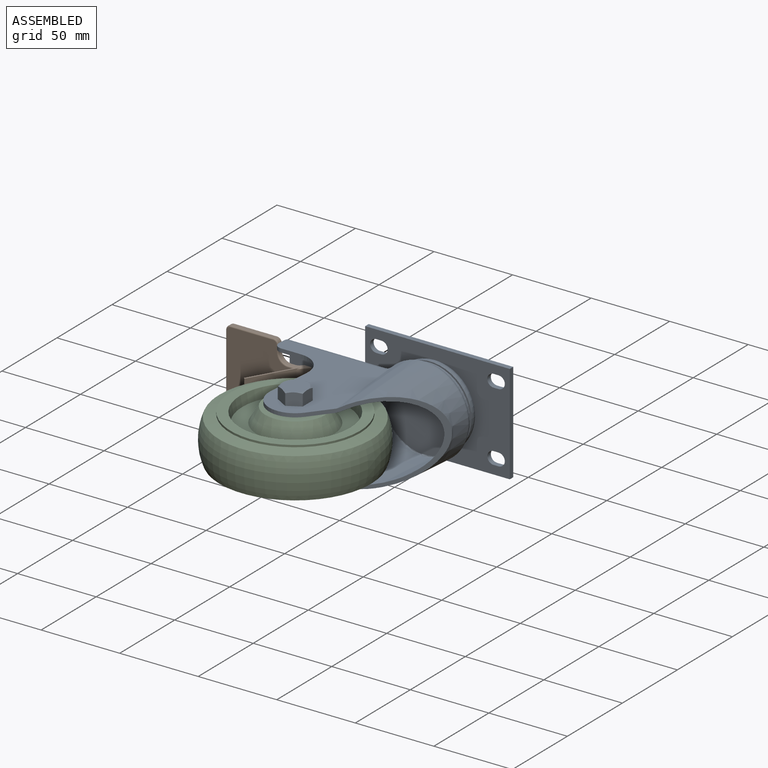
[diagram: assembled view]
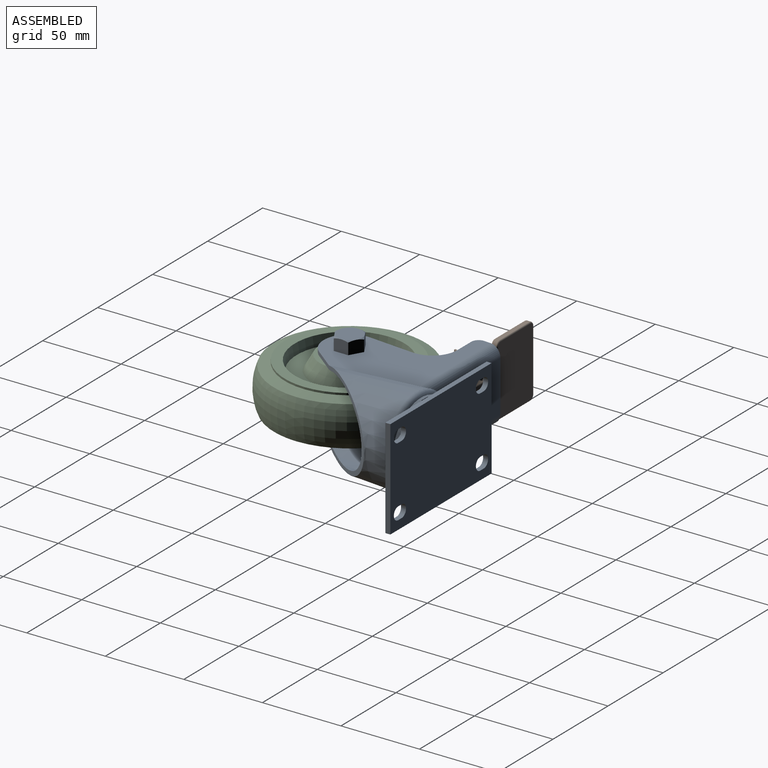
[diagram: assembled view, second angle]
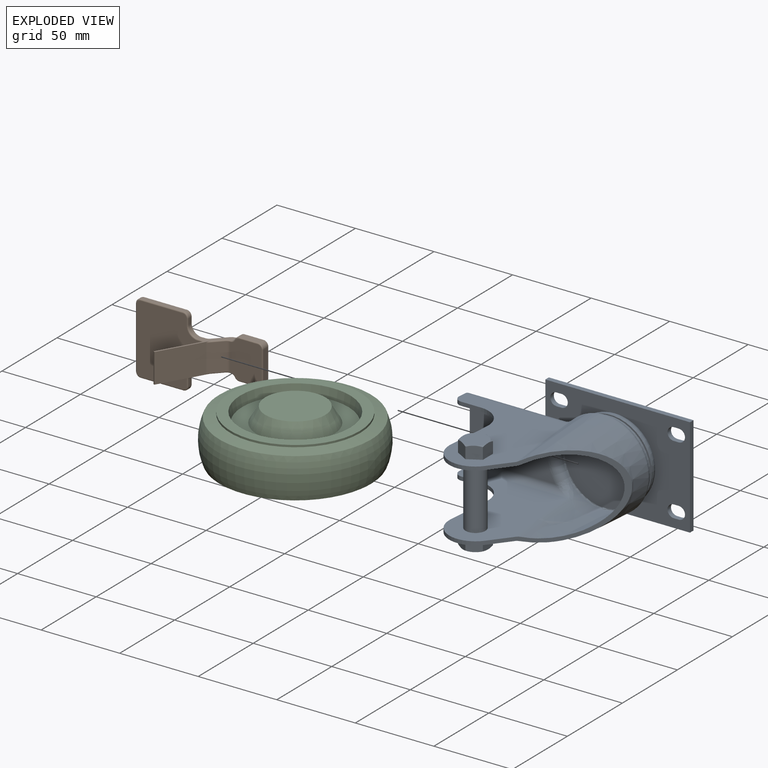
[diagram: exploded view]
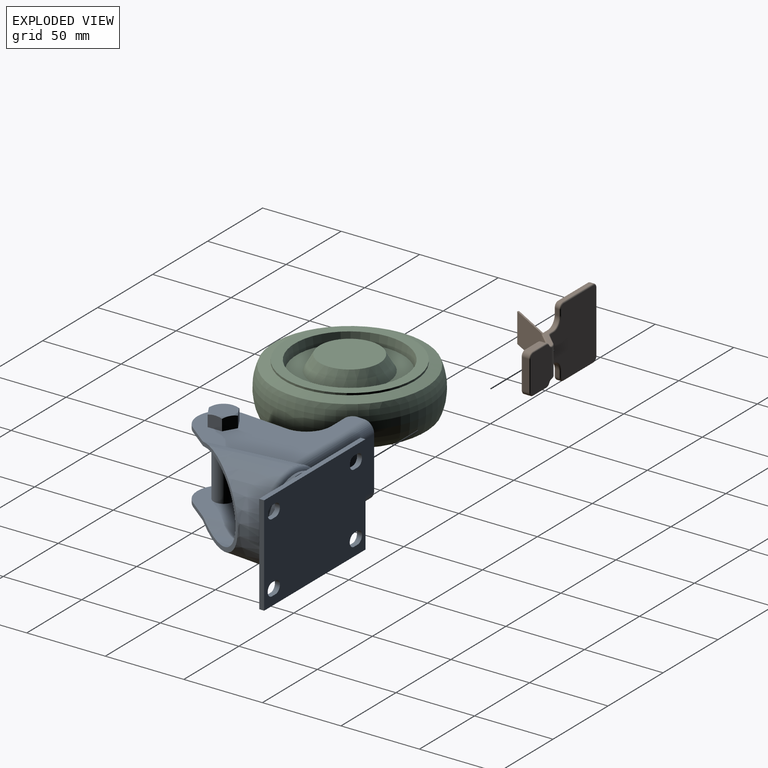
[diagram: exploded view, second angle]
ASSEMBLY  parts=3 mates=2
PART A: 105 faces, bbox 134.1x105.2x69.5 mm
  f0: plane 92.08x63.5mm, normal (0,1,0), area 5548mm2, adj f1,f2,f3,f4,f5,f6,f7,f8
  f1: plane 92.08x3.18mm, normal (0,0,1), area 292.3mm2, adj f0,f2,f4,f21
  f2: plane 63.5x3.18mm, normal (1,0,0), area 201.6mm2, adj f0,f1,f3,f21
  f3: plane 92.08x3.18mm, normal (0,0,-1), area 292.3mm2, adj f0,f2,f4,f21
  f4: plane 63.5x3.18mm, normal (-1,0,0), area 201.6mm2, adj f0,f1,f3,f21
  f5: cylinder r=3.97mm len=7.94mm, axis (0,1,0), area 39.6mm2, adj f0,f6,f8,f21
  f6: plane 3.18x3.18mm, normal (0,0,-1), area 10.1mm2, adj f0,f5,f7,f21
  f7: cylinder r=3.97mm len=7.94mm, axis (0,1,0), area 39.6mm2, adj f0,f6,f8,f21
  f8: plane 3.18x3.18mm, normal (0,0,1), area 10.1mm2, adj f0,f5,f7,f21
  f9: cylinder r=3.97mm len=7.94mm, axis (0,1,0), area 39.6mm2, adj f0,f10,f12,f21
  f10: plane 3.18x3.18mm, normal (0,0,1), area 10.1mm2, adj f0,f9,f11,f21
  f11: cylinder r=3.97mm len=7.94mm, axis (0,1,0), area 39.6mm2, adj f0,f10,f12,f21
  f12: plane 3.18x3.18mm, normal (0,0,-1), area 10.1mm2, adj f0,f9,f11,f21
  f13: cylinder r=3.97mm len=7.94mm, axis (0,1,0), area 39.6mm2, adj f0,f14,f16,f21
  f14: plane 3.18x3.18mm, normal (0,0,-1), area 10.1mm2, adj f0,f13,f15,f21
  f15: cylinder r=3.97mm len=7.94mm, axis (0,1,0), area 39.6mm2, adj f0,f14,f16,f21
  f16: plane 3.18x3.18mm, normal (0,0,1), area 10.1mm2, adj f0,f13,f15,f21
  f17: cylinder r=3.97mm len=7.94mm, axis (0,1,0), area 39.6mm2, adj f0,f18,f20,f21
  f18: plane 3.18x3.18mm, normal (0,0,1), area 10.1mm2, adj f0,f17,f19,f21
  f19: cylinder r=3.97mm len=7.94mm, axis (0,1,0), area 39.6mm2, adj f0,f18,f20,f21
  f20: plane 3.18x3.18mm, normal (0,0,-1), area 10.1mm2, adj f0,f17,f19,f21
  f21: plane 98.03x69.45mm, normal (0,-1,0), area 4119.3mm2, adj f1,f2,f3,f4,f5,f6,f7,f8
  f22: torus R=21.34mm, axis (0,1,0), area 572.7mm2, adj f21,f23,f24
  f23: torus R=21.34mm, axis (0,1,0), area 572.7mm2, adj f21,f22,f24
  f24: cylinder r=26.1mm len=52.2mm, axis (0,1,0), area 249.9mm2, adj f22,f23,f25
  f25: plane 52.2x52.2mm, normal (0,-1,0), area 281.6mm2, adj f24,f26
  f26: cylinder r=24.32mm len=48.64mm, axis (0,1,0), area 174.7mm2, adj f25,f27
  f27: plane 52.2x52.2mm, normal (0,1,0), area 281.6mm2, adj f26,f29
  f28: plane 15.88x15.88mm, normal (0,0,-1), area 197.9mm2, adj f32,f33,f34,f35,f36,f37
  f29: cylinder r=26.1mm len=52.2mm, axis (0,1,0), area 343.6mm2, adj f27,f38
  f30: plane 15.88x15.88mm, normal (0,0,1), area 197.9mm2, adj f39,f40,f41,f42,f43,f44
  f31: plane 23.81x9.53mm, normal (0,1,0), area 226.8mm2, adj f48,f49,f50,f51
  f32: cone r=0mm half-angle=60deg, axis (0,0,1), area 6.2mm2, adj f28,f54,f55
  f33: cone r=0mm half-angle=60deg, axis (0,0,1), area 6.2mm2, adj f28,f55,f56
  f34: cone r=0mm half-angle=60deg, axis (0,0,1), area 6.2mm2, adj f28,f56,f57
  f35: cone r=0mm half-angle=60deg, axis (0,0,1), area 6.2mm2, adj f28,f57,f58
  f36: cone r=0mm half-angle=60deg, axis (0,0,1), area 6.2mm2, adj f28,f58,f59
  f37: cone r=0mm half-angle=60deg, axis (0,0,1), area 6.2mm2, adj f28,f54,f59
  f38: plane 52.2x52.2mm, normal (0,-1,0), area 129.4mm2, adj f29,f60,f62
  f39: cone r=0mm half-angle=60deg, axis (0,0,-1), area 6.2mm2, adj f30,f64,f65
  f40: cone r=0mm half-angle=60deg, axis (0,0,-1), area 6.2mm2, adj f30,f65,f66
  f41: cone r=0mm half-angle=60deg, axis (0,0,-1), area 6.2mm2, adj f30,f66,f67
  f42: cone r=0mm half-angle=60deg, axis (0,0,-1), area 6.2mm2, adj f30,f67,f68
  f43: cone r=0mm half-angle=60deg, axis (0,0,-1), area 6.2mm2, adj f30,f68,f69
  f44: cone r=0mm half-angle=60deg, axis (0,0,-1), area 6.2mm2, adj f30,f64,f69
  f45: plane 50.59x50.59mm, normal (0,-1,0), area 2010.5mm2, adj f70,f71
  f46: bspline ~4.23x3.4mm, area 11.5mm2, adj f47,f62,f63,f76
  f47: torus R=31.64mm, axis (0,-1,0), area 160.4mm2, adj f46,f52,f60,f62,f77
  f48: plane 25.4x0.79mm, normal (-0.71,0.71,0), area 27.6mm2, adj f31,f49,f51,f77
  f49: plane 11.11x0.79mm, normal (0,0.71,0.71), area 11.6mm2, adj f31,f48,f50,f77
  f50: plane 25.4x0.79mm, normal (0.71,0.71,0), area 27.6mm2, adj f31,f49,f51,f77
  f51: plane 11.11x0.79mm, normal (0,0.71,-0.71), area 11.6mm2, adj f31,f48,f50,f77
  f52: bspline ~4.23x3.4mm, area 11.5mm2, adj f47,f60,f61,f78
  f53: torus R=31.64mm, axis (0,-1,0), area 266mm2, adj f70,f71,f73,f74,f79
  f54: plane 9.92x8.69mm, normal (-1,0,0), area 70.5mm2, adj f32,f37,f55,f59,f80
  f55: plane 8.69x8.69mm, normal (-0.5,0.87,0), area 70.5mm2, adj f32,f33,f54,f56,f80
  f56: plane 8.69x8.69mm, normal (0.5,0.87,0), area 70.5mm2, adj f33,f34,f55,f57,f80
  f57: plane 9.92x8.69mm, normal (1,0,0), area 70.5mm2, adj f34,f35,f56,f58,f80
  f58: plane 8.69x8.69mm, normal (0.5,-0.87,0), area 70.5mm2, adj f35,f36,f57,f59,f80
  f59: plane 8.69x8.69mm, normal (-0.5,-0.87,0), area 70.5mm2, adj f36,f37,f54,f58,f80
  f60: torus R=25.29mm, axis (0,-1,0), area 440mm2, adj f38,f47,f52,f62,f82
  f61: bspline ~9.82x9.36mm, area 40mm2, adj f52,f78,f81,f82
  f62: torus R=25.29mm, axis (0,-1,0), area 440mm2, adj f38,f46,f47,f60,f82
  f63: bspline ~9.82x9.36mm, area 40mm2, adj f46,f76,f82,f83
  f64: plane 8.69x8.69mm, normal (0.5,-0.87,0), area 70.5mm2, adj f39,f44,f65,f69,f84
  f65: plane 8.69x8.69mm, normal (-0.5,-0.87,0), area 70.5mm2, adj f39,f40,f64,f66,f84
  f66: plane 9.92x8.69mm, normal (-1,0,0), area 70.5mm2, adj f40,f41,f65,f67,f84
  f67: plane 8.69x8.69mm, normal (-0.5,0.87,0), area 70.5mm2, adj f41,f42,f66,f68,f84
  f68: plane 8.69x8.69mm, normal (0.5,0.87,0), area 70.5mm2, adj f42,f43,f67,f69,f84
  f69: plane 9.92x8.69mm, normal (1,0,0), area 70.5mm2, adj f43,f44,f64,f68,f84
  f70: torus R=25.29mm, axis (0,-1,0), area 104.7mm2, adj f45,f53,f71,f74,f85
  f71: torus R=25.29mm, axis (0,-1,0), area 104.7mm2, adj f45,f53,f70,f73,f85
  f72: bspline ~11.14x9.48mm, area 59.8mm2, adj f73,f85,f87,f88
  f73: bspline ~6.13x5.69mm, area 16.1mm2, adj f53,f71,f72,f88
  f74: bspline ~6.13x5.69mm, area 16.1mm2, adj f53,f70,f75,f94
  f75: bspline ~11.14x9.48mm, area 59.8mm2, adj f74,f85,f93,f94
  f76: cylinder r=6.35mm len=64.36mm, axis (1,0,0), area 590.8mm2, adj f46,f63,f77,f84,f95
  f77: plane 54.38x33.01mm, normal (0,1,0), area 1384.2mm2, adj f47,f48,f49,f50,f51,f76,f78,f95
  f78: cylinder r=6.35mm len=64.36mm, axis (-1,0,0), area 590.8mm2, adj f52,f61,f77,f80,f95
  f79: plane 54.59x33.01mm, normal (0,-1,0), area 1673.3mm2, adj f53,f88,f94,f95
  f80: plane 73.82x70.62mm, normal (0,0,-1), area 2610.7mm2, adj f54,f55,f56,f57,f58,f59,f78,f81
  f81: bspline ~54.78x7.19mm, area 88.2mm2, adj f61,f80,f82,f101
  f82: cone r=0mm half-angle=3deg, axis (0,1,0), area 4023.8mm2, adj f60,f61,f62,f63,f81,f83,f101
  f83: bspline ~54.78x7.19mm, area 88.2mm2, adj f63,f82,f84,f101
  f84: plane 73.82x70.62mm, normal (0,0,1), area 2610.7mm2, adj f64,f65,f66,f67,f68,f69,f76,f83
  f85: cone r=0mm half-angle=3deg, axis (0,1,0), area 3836.4mm2, adj f70,f71,f72,f75,f87,f93,f101
  f86: cylinder r=16.67mm len=29.78mm, axis (0,0,-1), area 101.5mm2, adj f80,f92,f101,f102
  f87: bspline ~54.9x8.15mm, area 153mm2, adj f72,f85,f101,f102
  f88: cylinder r=3.98mm len=64.36mm, axis (-1,0,0), area 370.5mm2, adj f72,f73,f79,f95,f102
  f89: cylinder r=4.76mm len=5.18mm, axis (0,0,-1), area 18.8mm2, adj f80,f90,f95,f102
  f90: plane 12.54x2.38mm, normal (0,-1,0), area 29.8mm2, adj f80,f89,f91,f102
  f91: cylinder r=15.88mm len=17.26mm, axis (0,0,-1), area 62.5mm2, adj f80,f90,f92,f102
  f92: plane 28.91x2.53mm, normal (-1,0.09,0), area 68.9mm2, adj f80,f86,f91,f102
  f93: bspline ~54.9x8.15mm, area 153mm2, adj f75,f85,f101,f103
  f94: cylinder r=3.98mm len=64.36mm, axis (1,0,0), area 370.5mm2, adj f74,f75,f79,f95,f103
  f95: plane 45.62x10.93mm, normal (-1,0.09,0), area 137.3mm2, adj f76,f77,f78,f79,f80,f84,f88,f89
  f96: cylinder r=4.76mm len=5.18mm, axis (0,0,-1), area 18.8mm2, adj f84,f95,f97,f103
  f97: plane 12.54x2.38mm, normal (0,-1,0), area 29.8mm2, adj f84,f96,f98,f103
  f98: cylinder r=15.88mm len=17.26mm, axis (0,0,-1), area 62.5mm2, adj f84,f97,f99,f103
  f99: plane 28.91x2.53mm, normal (-1,0.09,0), area 68.9mm2, adj f84,f98,f100,f103
  f100: cylinder r=16.67mm len=29.78mm, axis (0,0,-1), area 101.5mm2, adj f84,f99,f101,f103
  f101: plane 63.22x51.94mm, normal (0.79,-0.62,0), area 497.4mm2, adj f80,f81,f82,f83,f84,f85,f86,f87
  f102: plane 73.82x70.62mm, normal (0,0,1), area 2702.3mm2, adj f86,f87,f88,f89,f90,f91,f92,f95
  f103: plane 73.82x70.62mm, normal (0,0,-1), area 2702.3mm2, adj f93,f94,f95,f96,f97,f98,f99,f100
  f104: cylinder r=6.35mm len=40.64mm, axis (0,0,-1), area 1621.5mm2, adj f102,f103
PART B: 92 faces, bbox 75.9x40.2x46.1 mm
  f0: cylinder r=3.17mm len=4.28mm, axis (0,-1,0), area 21.3mm2, adj f1,f6,f8,f11
  f1: plane 19.05x4.28mm, normal (1,0,0), area 81.5mm2, adj f0,f2,f5,f12
  f2: cylinder r=3.17mm len=4.28mm, axis (0,1,0), area 21.3mm2, adj f1,f4,f13,f16
  f3: cylinder r=0.63mm len=11.89mm, axis (1,0,0), area 11.9mm2, adj f4,f16,f17,f19
  f4: torus R=2.54mm, axis (0,1,0), area 4.6mm2, adj f2,f3,f5,f19
  f5: cylinder r=0.64mm len=19.05mm, axis (0,0,-1), area 19mm2, adj f1,f4,f6,f19
  f6: torus R=2.54mm, axis (0,1,0), area 4.6mm2, adj f0,f5,f7,f19
  f7: cylinder r=0.63mm len=11.89mm, axis (-1,0,0), area 11.9mm2, adj f6,f8,f9,f19
  f8: plane 11.89x4.28mm, normal (0,0,-1), area 50.9mm2, adj f0,f7,f10,f21
  f9: torus R=2.54mm, axis (0,1,0), area 3.1mm2, adj f7,f19,f21,f22
  f10: cylinder r=0.64mm len=11.89mm, axis (1,0,0), area 11.9mm2, adj f8,f11,f15,f25
  f11: torus R=2.54mm, axis (0,-1,0), area 4.6mm2, adj f0,f10,f12,f25
  f12: cylinder r=0.64mm len=19.05mm, axis (0,0,-1), area 19mm2, adj f1,f11,f13,f25
  f13: torus R=2.54mm, axis (0,-1,0), area 4.6mm2, adj f2,f12,f14,f25
  f14: cylinder r=0.64mm len=11.89mm, axis (-1,0,0), area 11.9mm2, adj f13,f16,f18,f25
  f15: torus R=2.54mm, axis (0,-1,0), area 3.1mm2, adj f10,f21,f23,f25
  f16: plane 11.89x4.28mm, normal (0,0,1), area 50.9mm2, adj f2,f3,f14,f28
  f17: torus R=2.54mm, axis (0,1,0), area 3.1mm2, adj f3,f19,f27,f28
  f18: torus R=2.54mm, axis (0,-1,0), area 3.1mm2, adj f14,f25,f28,f29
  f19: plane 24.15x20.26mm, normal (0,-1,0), area 463.9mm2, adj f3,f4,f5,f6,f7,f9,f17,f20
  f20: cylinder r=0.64mm len=0.64mm, axis (1,0,0), area 0.2mm2, adj f19,f22,f46,f73
  f21: cylinder r=3.17mm len=4.28mm, axis (0,-1,0), area 14.5mm2, adj f8,f9,f15,f47
  f22: torus R=3.81mm, axis (0,1,0), area 3.6mm2, adj f9,f19,f20,f47
  f23: torus R=3.81mm, axis (0,-1,0), area 2.6mm2, adj f15,f25,f26,f47
  f24: torus R=7.14mm, axis (0,1,0), area 13mm2, adj f34,f44,f49,f50
  f25: plane 24.15x18.91mm, normal (0,1,0), area 440.1mm2, adj f10,f11,f12,f13,f14,f15,f18,f23
  f26: bspline ~1.24x0.78mm, area 1.1mm2, adj f23,f47,f48,f51
  f27: torus R=3.81mm, axis (0,1,0), area 3.6mm2, adj f17,f19,f31,f55
  f28: cylinder r=3.17mm len=4.28mm, axis (0,-1,0), area 14.5mm2, adj f16,f17,f18,f55
  f29: torus R=3.81mm, axis (0,-1,0), area 2.6mm2, adj f18,f25,f30,f55
  f30: bspline ~1.24x0.78mm, area 1.1mm2, adj f29,f51,f54,f55
  f31: cylinder r=0.64mm len=0.64mm, axis (-1,0,0), area 0.2mm2, adj f19,f27,f56,f77
  f32: cylinder r=3.17mm len=17.53mm, axis (0,0,1), area 44.8mm2, adj f19,f33,f46,f56
  f33: plane 17.53x7.23mm, normal (0.72,-0.69,0), area 175.6mm2, adj f32,f45,f57,f58
  f34: plane 44.02x43.21mm, normal (0,-1,0), area 1601.1mm2, adj f24,f35,f36,f37,f38,f39,f40,f41
  f35: torus R=7.14mm, axis (0,1,0), area 13mm2, adj f34,f36,f61,f62
  f36: cylinder r=0.79mm len=3.77mm, axis (0,0,-1), area 4.7mm2, adj f34,f35,f37,f63
  f37: torus R=2.38mm, axis (0,1,0), area 5.7mm2, adj f34,f36,f38,f64
  f38: cylinder r=0.79mm len=26.99mm, axis (-1,0,0), area 33.6mm2, adj f34,f37,f39,f65
  f39: torus R=2.38mm, axis (0,1,0), area 5.7mm2, adj f34,f38,f40,f66
  f40: cylinder r=0.79mm len=39.04mm, axis (0,0,-1), area 48.7mm2, adj f34,f39,f41,f67
  f41: torus R=2.38mm, axis (0,1,0), area 5.7mm2, adj f34,f40,f42,f68
  f42: cylinder r=0.79mm len=26.99mm, axis (1,0,0), area 33.6mm2, adj f34,f41,f43,f69
  f43: torus R=2.38mm, axis (0,1,0), area 5.7mm2, adj f34,f42,f44,f70
  f44: cylinder r=0.79mm len=3.77mm, axis (0,0,-1), area 4.7mm2, adj f24,f34,f43,f71
  f45: cylinder r=0.64mm len=7.67mm, axis (0.69,0.72,0), area 9.1mm2, adj f33,f46,f58,f73
  f46: torus R=3.81mm, axis (0,0,1), area 2.7mm2, adj f20,f32,f45,f73
  f47: cylinder r=3.17mm len=4.28mm, axis (0,-1,0), area 14.5mm2, adj f21,f22,f23,f26,f73
  f48: torus R=5.71mm, axis (0,0,1), area 3.7mm2, adj f26,f51,f52,f73
  f49: cylinder r=6.35mm len=6.35mm, axis (0,1,0), area 24.5mm2, adj f24,f71,f72,f73
  f50: cylinder r=0.79mm len=4.56mm, axis (1,0,0), area 5.4mm2, adj f24,f34,f60,f73
  f51: cylinder r=6.35mm len=17.86mm, axis (0,0,-1), area 89.9mm2, adj f25,f26,f30,f48,f54,f74
  f52: cylinder r=0.64mm len=7.43mm, axis (-0.69,-0.72,0), area 9.7mm2, adj f48,f73,f74,f75
  f53: cylinder r=0.63mm len=7.43mm, axis (0.69,0.72,0), area 9.7mm2, adj f54,f74,f76,f77
  f54: torus R=5.71mm, axis (0,0,-1), area 3.7mm2, adj f30,f51,f53,f77
  f55: cylinder r=3.17mm len=4.28mm, axis (0,-1,0), area 14.5mm2, adj f27,f28,f29,f30,f77
  f56: torus R=3.81mm, axis (0,0,-1), area 2.7mm2, adj f31,f32,f57,f77
  f57: cylinder r=0.63mm len=7.67mm, axis (-0.69,-0.72,0), area 9.1mm2, adj f33,f56,f58,f77
  f58: plane 28.18x18.8mm, normal (0.87,-0.5,0), area 562.5mm2, adj f33,f45,f57,f59,f73,f77
  f59: plane 18.8x0.88mm, normal (-0.5,-0.87,0), area 19.1mm2, adj f58,f60,f73,f77
  f60: plane 26.22x18.99mm, normal (-0.87,0.5,0), area 548.3mm2, adj f34,f50,f59,f61,f73,f77
  f61: cylinder r=0.79mm len=4.56mm, axis (-1,0,0), area 5.4mm2, adj f34,f35,f60,f77
  f62: cylinder r=6.35mm len=6.35mm, axis (0,-1,0), area 24.5mm2, adj f35,f63,f77,f78
  f63: plane 3.77x2.38mm, normal (1,0,0), area 9mm2, adj f36,f62,f64,f79
  f64: cylinder r=3.17mm len=3.18mm, axis (0,-1,0), area 11.8mm2, adj f37,f63,f65,f80
  f65: plane 26.99x2.38mm, normal (0,0,1), area 64.1mm2, adj f38,f64,f66,f81
  f66: cylinder r=3.17mm len=3.18mm, axis (0,1,0), area 11.8mm2, adj f39,f65,f67,f82
  f67: plane 39.04x2.38mm, normal (-1,0,0), area 92.7mm2, adj f40,f66,f68,f83
  f68: cylinder r=3.17mm len=3.18mm, axis (0,-1,0), area 11.8mm2, adj f41,f67,f69,f84
  f69: plane 26.99x2.38mm, normal (0,0,-1), area 64.1mm2, adj f42,f68,f70,f85
  f70: cylinder r=3.17mm len=3.18mm, axis (0,1,0), area 11.8mm2, adj f43,f69,f71,f86
  f71: plane 3.77x2.38mm, normal (1,0,0), area 9mm2, adj f44,f49,f70,f87
  f72: bspline ~7.14x6.99mm, area 11.7mm2, adj f49,f87,f88,f91
  f73: plane 38.88x25.32mm, normal (0,0,-1), area 81.9mm2, adj f20,f45,f46,f47,f48,f49,f50,f52
  f74: plane 17.53x6.99mm, normal (-0.72,0.69,0), area 169.9mm2, adj f51,f52,f53,f89
  f75: torus R=3.81mm, axis (0,0,1), area 2.7mm2, adj f52,f73,f88,f89
  f76: torus R=3.81mm, axis (0,0,-1), area 2.7mm2, adj f53,f77,f89,f90
  f77: plane 38.88x25.32mm, normal (0,0,1), area 81.9mm2, adj f31,f53,f54,f55,f56,f57,f58,f59
  f78: bspline ~7.14x6.99mm, area 11.7mm2, adj f62,f79,f90,f91
  f79: cylinder r=0.79mm len=3.77mm, axis (0,0,-1), area 4.7mm2, adj f63,f78,f80,f91
  f80: torus R=2.38mm, axis (0,-1,0), area 5.7mm2, adj f64,f79,f81,f91
  f81: cylinder r=0.79mm len=26.99mm, axis (1,0,0), area 33.6mm2, adj f65,f80,f82,f91
  f82: torus R=2.38mm, axis (0,-1,0), area 5.7mm2, adj f66,f81,f83,f91
  f83: cylinder r=0.79mm len=39.04mm, axis (0,0,-1), area 48.7mm2, adj f67,f82,f84,f91
  f84: torus R=2.38mm, axis (0,-1,0), area 5.7mm2, adj f68,f83,f85,f91
  f85: cylinder r=0.79mm len=26.99mm, axis (-1,0,0), area 33.6mm2, adj f69,f84,f86,f91
  f86: torus R=2.38mm, axis (0,-1,0), area 5.7mm2, adj f70,f85,f87,f91
  f87: cylinder r=0.79mm len=3.77mm, axis (0,0,-1), area 4.7mm2, adj f71,f72,f86,f91
  f88: cylinder r=0.64mm len=2.35mm, axis (-1,0,0), area 2.3mm2, adj f72,f73,f75,f91
  f89: cylinder r=3.17mm len=17.53mm, axis (0,0,1), area 44.8mm2, adj f74,f75,f76,f91
  f90: cylinder r=0.63mm len=2.35mm, axis (1,0,0), area 2.3mm2, adj f76,f77,f78,f91
  f91: plane 43.99x41.43mm, normal (0,1,0), area 1573.9mm2, adj f72,f78,f79,f80,f81,f82,f83,f84
PART C: 16 faces, bbox 101.6x96.5x38.1 mm
  f0: plane 38.1x38.1mm, normal (0,0,1), area 1140.1mm2, adj f1
  f1: cone r=0mm half-angle=30deg, axis (0,0,-1), area 1506.5mm2, adj f0,f2
  f2: plane 67.61x67.61mm, normal (0,0,1), area 1696.9mm2, adj f1,f3
  f3: cone r=0mm half-angle=10deg, axis (0,0,1), area 1392.3mm2, adj f2,f4
  f4: plane 82.55x82.55mm, normal (0,0,1), area 1520.1mm2, adj f3,f5
  f5: cylinder r=41.27mm len=82.55mm, axis (0,0,-1), area 329.4mm2, adj f4,f6
  f6: cone r=0mm half-angle=75deg, axis (0,0,-1), area 2034.1mm2, adj f5,f7,f8
  f7: torus R=17.61mm, axis (0,0,-1), area 4101.4mm2, adj f6,f8,f9
  f8: torus R=17.61mm, axis (0,0,-1), area 4101.4mm2, adj f6,f7,f9
  f9: cone r=0mm half-angle=75deg, axis (0,0,1), area 2034.1mm2, adj f7,f8,f10
  f10: cylinder r=41.27mm len=82.55mm, axis (0,0,-1), area 329.4mm2, adj f9,f11
  f11: plane 82.55x82.55mm, normal (0,0,-1), area 1520.1mm2, adj f10,f12
  f12: cone r=0mm half-angle=10deg, axis (0,0,-1), area 1392.3mm2, adj f11,f13
  f13: plane 67.61x67.61mm, normal (0,0,-1), area 1696.9mm2, adj f12,f15
  f14: plane 38.1x38.1mm, normal (0,0,-1), area 1140.1mm2, adj f15
  f15: cone r=0mm half-angle=30deg, axis (0,0,1), area 1506.5mm2, adj f13,f14
PLACE A t=(1601.62,289.79,650.46)mm
PLACE B t=(1599.53,289.79,650.46)mm
PLACE C t=(1601.62,289.79,650.46)mm fixed
MATE fastened A.f32 <-> C.f8  axis (0,0,-1) through (1566.7,207.24,650.46)mm
MATE fastened A.f77 <-> B.f19  axis (0,1,0) through (1548.42,270.74,650.46)mm
